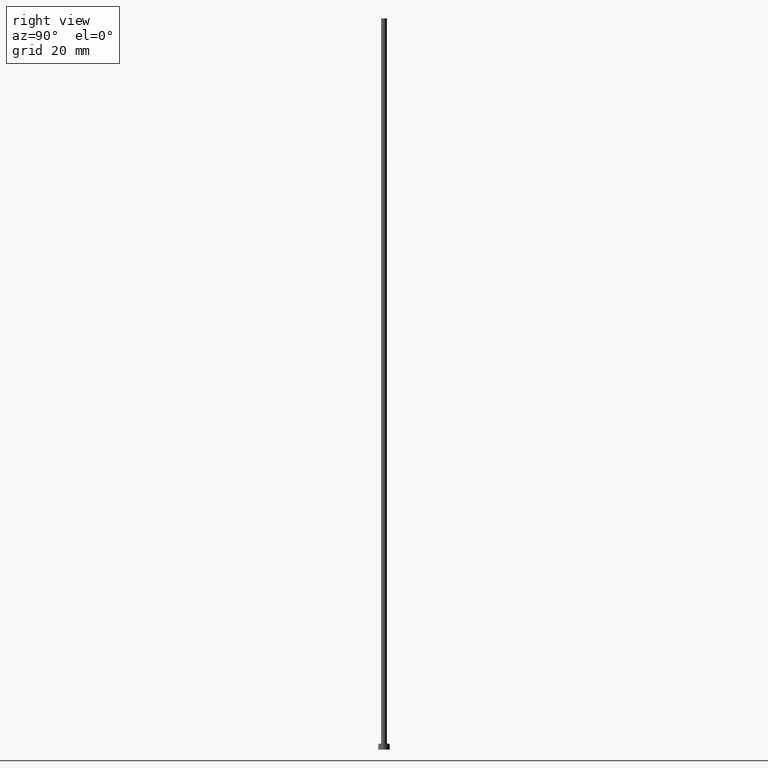
[diagram: clean part render]
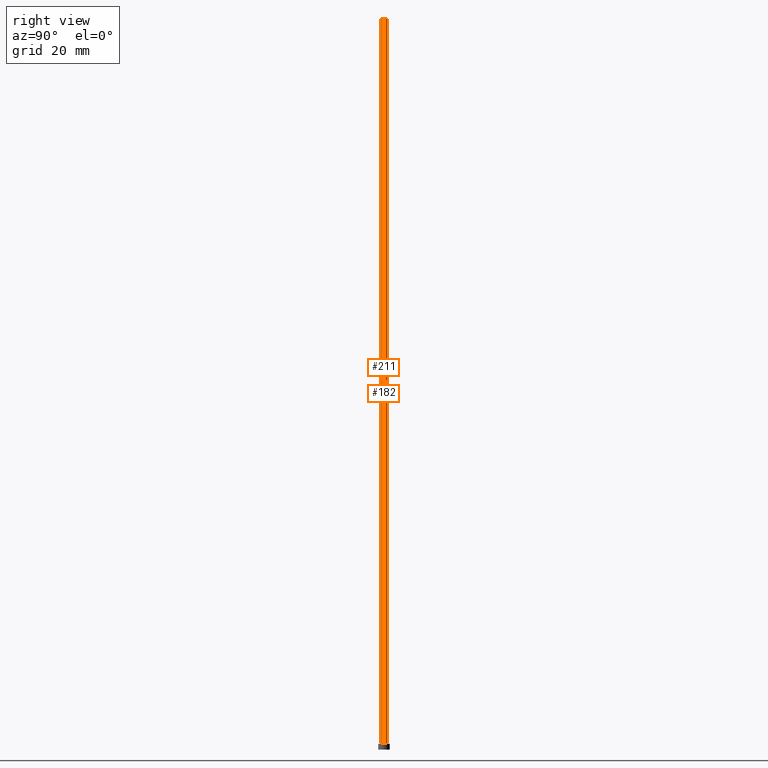
[diagram: same view with one multi-face feature highlighted, each face labeled with its STEP entity id]
A machine part, right view. The highlighted faces form ONE feature: a constant-radius fillet chain: 2 tangent blend faces with common blend radius 1 mm. The faces share edges in the B-rep.
Their STEP definitions:
[1] entity #211 (Cylinder):
#7 = FACE_OUTER_BOUND ( 'NONE', #215, .T. ) ;
#21 = AXIS2_PLACEMENT_3D ( 'NONE', #166, #243, #68 ) ;
#24 = CARTESIAN_POINT ( 'NONE',  ( -1.000000000000000000, 0.000000000000000000, 2.000000000000000000 ) ) ;
#25 = DIRECTION ( 'NONE',  ( -1.000000000000000000, 0.000000000000000000, 0.000000000000000000 ) ) ;
#27 = CARTESIAN_POINT ( 'NONE',  ( 1.000000000000000000, 1.224646799147353207E-16, 250.0000000000000000 ) ) ;
#29 = DIRECTION ( 'NONE',  ( -0.000000000000000000, -0.000000000000000000, -1.000000000000000000 ) ) ;
#30 = DIRECTION ( 'NONE',  ( 1.000000000000000000, 0.000000000000000000, 0.000000000000000000 ) ) ;
#31 = ORIENTED_EDGE ( 'NONE', *, *, #128, .F. ) ;
#43 = LINE ( 'NONE', #27, #44 ) ;
#44 = VECTOR ( 'NONE', #29, 1000.000000000000000 ) ;
#48 = AXIS2_PLACEMENT_3D ( 'NONE', #127, #69, #30 ) ;
#49 = EDGE_CURVE ( 'NONE', #115, #79, #187, .T. ) ;
#64 = CARTESIAN_POINT ( 'NONE',  ( -1.000000000000000000, 0.000000000000000000, 250.0000000000000000 ) ) ;
#68 = DIRECTION ( 'NONE',  ( 1.000000000000000000, 0.000000000000000000, 0.000000000000000000 ) ) ;
#69 = DIRECTION ( 'NONE',  ( 0.000000000000000000, 0.000000000000000000, 1.000000000000000000 ) ) ;
#70 = EDGE_CURVE ( 'NONE', #79, #249, #139, .T. ) ;
#79 = VERTEX_POINT ( 'NONE', #24 ) ;
#87 = AXIS2_PLACEMENT_3D ( 'NONE', #200, #88, #25 ) ;
#88 = DIRECTION ( 'NONE',  ( -0.000000000000000000, -0.000000000000000000, -1.000000000000000000 ) ) ;
#89 = CARTESIAN_POINT ( 'NONE',  ( -1.000000000000000000, 0.000000000000000000, 250.0000000000000000 ) ) ;
#90 = DIRECTION ( 'NONE',  ( -0.000000000000000000, -0.000000000000000000, -1.000000000000000000 ) ) ;
#91 = CYLINDRICAL_SURFACE ( 'NONE', #87, 1.000000000000000000 ) ;
#97 = ORIENTED_EDGE ( 'NONE', *, *, #49, .T. ) ;
#115 = VERTEX_POINT ( 'NONE', #64 ) ;
#126 = CARTESIAN_POINT ( 'NONE',  ( 1.000000000000000000, 1.224646799147353207E-16, 250.0000000000000000 ) ) ;
#127 = CARTESIAN_POINT ( 'NONE',  ( 0.000000000000000000, 0.000000000000000000, 250.0000000000000000 ) ) ;
#128 = EDGE_CURVE ( 'NONE', #115, #231, #237, .T. ) ;
#139 = CIRCLE ( 'NONE', #21, 1.000000000000000000 ) ;
#166 = CARTESIAN_POINT ( 'NONE',  ( 0.000000000000000000, 0.000000000000000000, 2.000000000000000000 ) ) ;
#187 = LINE ( 'NONE', #89, #214 ) ;
#200 = CARTESIAN_POINT ( 'NONE',  ( 0.000000000000000000, 0.000000000000000000, 250.0000000000000000 ) ) ;
#205 = ORIENTED_EDGE ( 'NONE', *, *, #232, .F. ) ;
#211 = ADVANCED_FACE ( 'NONE', ( #7 ), #91, .T. ) ;
#214 = VECTOR ( 'NONE', #90, 1000.000000000000000 ) ;
#215 = EDGE_LOOP ( 'NONE', ( #205, #31, #97, #220 ) ) ;
#220 = ORIENTED_EDGE ( 'NONE', *, *, #70, .T. ) ;
#231 = VERTEX_POINT ( 'NONE', #126 ) ;
#232 = EDGE_CURVE ( 'NONE', #231, #249, #43, .T. ) ;
#237 = CIRCLE ( 'NONE', #48, 1.000000000000000000 ) ;
#243 = DIRECTION ( 'NONE',  ( 0.000000000000000000, 0.000000000000000000, 1.000000000000000000 ) ) ;
#244 = CARTESIAN_POINT ( 'NONE',  ( 1.000000000000000000, 1.224646799147353207E-16, 2.000000000000000000 ) ) ;
#249 = VERTEX_POINT ( 'NONE', #244 ) ;
[2] entity #182 (Cylinder):
#4 = CIRCLE ( 'NONE', #226, 1.000000000000000000 ) ;
#5 = DIRECTION ( 'NONE',  ( 0.000000000000000000, 0.000000000000000000, 1.000000000000000000 ) ) ;
#24 = CARTESIAN_POINT ( 'NONE',  ( -1.000000000000000000, 0.000000000000000000, 2.000000000000000000 ) ) ;
#27 = CARTESIAN_POINT ( 'NONE',  ( 1.000000000000000000, 1.224646799147353207E-16, 250.0000000000000000 ) ) ;
#29 = DIRECTION ( 'NONE',  ( -0.000000000000000000, -0.000000000000000000, -1.000000000000000000 ) ) ;
#40 = DIRECTION ( 'NONE',  ( 1.000000000000000000, 0.000000000000000000, 0.000000000000000000 ) ) ;
#43 = LINE ( 'NONE', #27, #44 ) ;
#44 = VECTOR ( 'NONE', #29, 1000.000000000000000 ) ;
#49 = EDGE_CURVE ( 'NONE', #115, #79, #187, .T. ) ;
#62 = CYLINDRICAL_SURFACE ( 'NONE', #202, 1.000000000000000000 ) ;
#64 = CARTESIAN_POINT ( 'NONE',  ( -1.000000000000000000, 0.000000000000000000, 250.0000000000000000 ) ) ;
#65 = DIRECTION ( 'NONE',  ( 0.000000000000000000, 0.000000000000000000, 1.000000000000000000 ) ) ;
#74 = EDGE_LOOP ( 'NONE', ( #158, #235, #156, #173 ) ) ;
#79 = VERTEX_POINT ( 'NONE', #24 ) ;
#82 = FACE_OUTER_BOUND ( 'NONE', #74, .T. ) ;
#84 = CARTESIAN_POINT ( 'NONE',  ( 0.000000000000000000, 0.000000000000000000, 250.0000000000000000 ) ) ;
#89 = CARTESIAN_POINT ( 'NONE',  ( -1.000000000000000000, 0.000000000000000000, 250.0000000000000000 ) ) ;
#90 = DIRECTION ( 'NONE',  ( -0.000000000000000000, -0.000000000000000000, -1.000000000000000000 ) ) ;
#94 = CIRCLE ( 'NONE', #227, 1.000000000000000000 ) ;
#106 = DIRECTION ( 'NONE',  ( -0.000000000000000000, -0.000000000000000000, -1.000000000000000000 ) ) ;
#112 = DIRECTION ( 'NONE',  ( 1.000000000000000000, 0.000000000000000000, 0.000000000000000000 ) ) ;
#115 = VERTEX_POINT ( 'NONE', #64 ) ;
#126 = CARTESIAN_POINT ( 'NONE',  ( 1.000000000000000000, 1.224646799147353207E-16, 250.0000000000000000 ) ) ;
#143 = DIRECTION ( 'NONE',  ( -1.000000000000000000, 0.000000000000000000, 0.000000000000000000 ) ) ;
#156 = ORIENTED_EDGE ( 'NONE', *, *, #238, .T. ) ;
#158 = ORIENTED_EDGE ( 'NONE', *, *, #199, .F. ) ;
#173 = ORIENTED_EDGE ( 'NONE', *, *, #49, .F. ) ;
#182 = ADVANCED_FACE ( 'NONE', ( #82 ), #62, .T. ) ;
#187 = LINE ( 'NONE', #89, #214 ) ;
#197 = CARTESIAN_POINT ( 'NONE',  ( 0.000000000000000000, 0.000000000000000000, 250.0000000000000000 ) ) ;
#199 = EDGE_CURVE ( 'NONE', #231, #115, #94, .T. ) ;
#202 = AXIS2_PLACEMENT_3D ( 'NONE', #84, #106, #143 ) ;
#214 = VECTOR ( 'NONE', #90, 1000.000000000000000 ) ;
#222 = CARTESIAN_POINT ( 'NONE',  ( 0.000000000000000000, 0.000000000000000000, 2.000000000000000000 ) ) ;
#226 = AXIS2_PLACEMENT_3D ( 'NONE', #222, #5, #112 ) ;
#227 = AXIS2_PLACEMENT_3D ( 'NONE', #197, #65, #40 ) ;
#231 = VERTEX_POINT ( 'NONE', #126 ) ;
#232 = EDGE_CURVE ( 'NONE', #231, #249, #43, .T. ) ;
#235 = ORIENTED_EDGE ( 'NONE', *, *, #232, .T. ) ;
#238 = EDGE_CURVE ( 'NONE', #249, #79, #4, .T. ) ;
#244 = CARTESIAN_POINT ( 'NONE',  ( 1.000000000000000000, 1.224646799147353207E-16, 2.000000000000000000 ) ) ;
#249 = VERTEX_POINT ( 'NONE', #244 ) ;